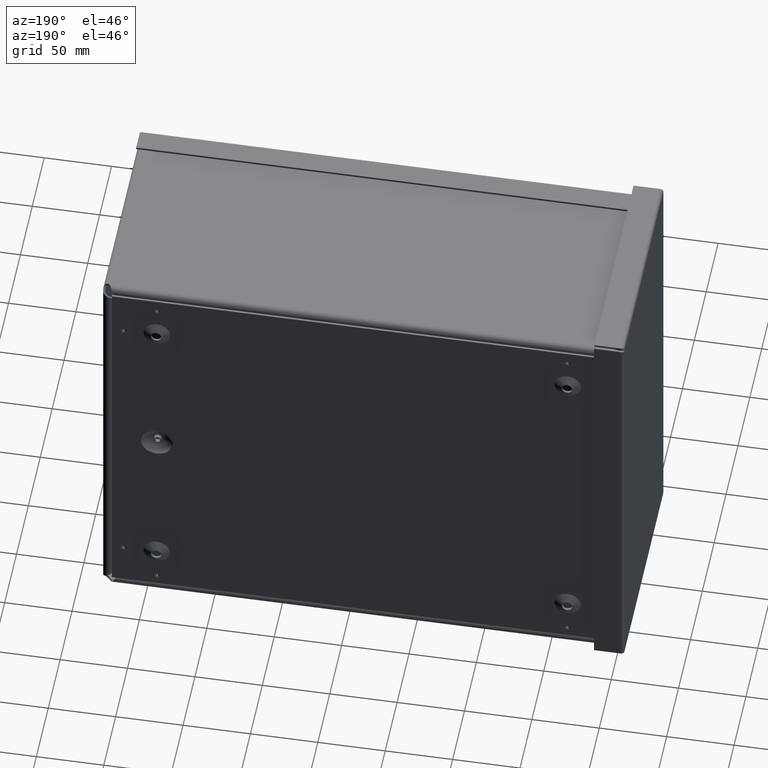
[diagram: clean part render]
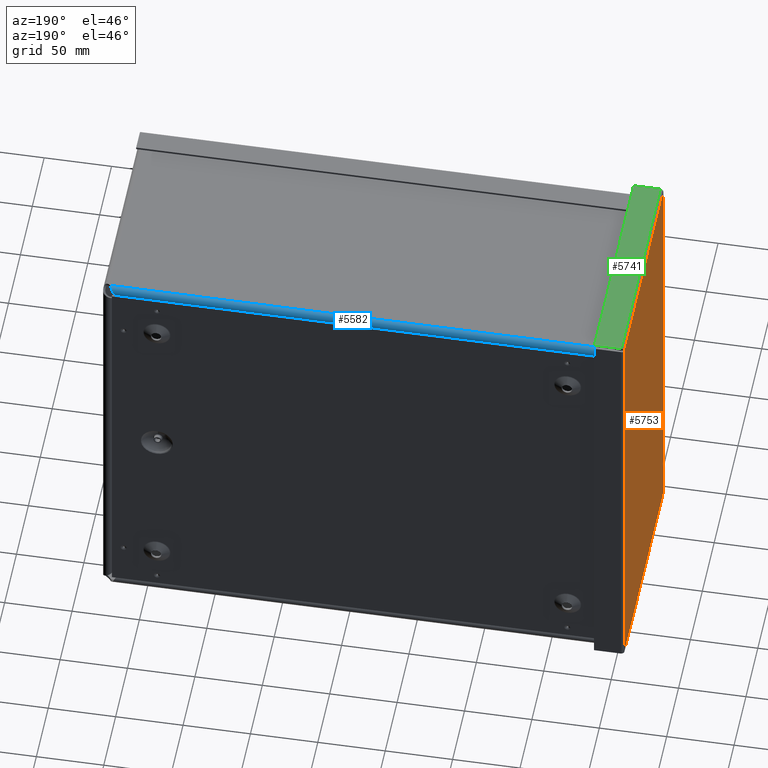
[diagram: same view with three faces highlighted in distinct colors, each labeled with its STEP entity id]
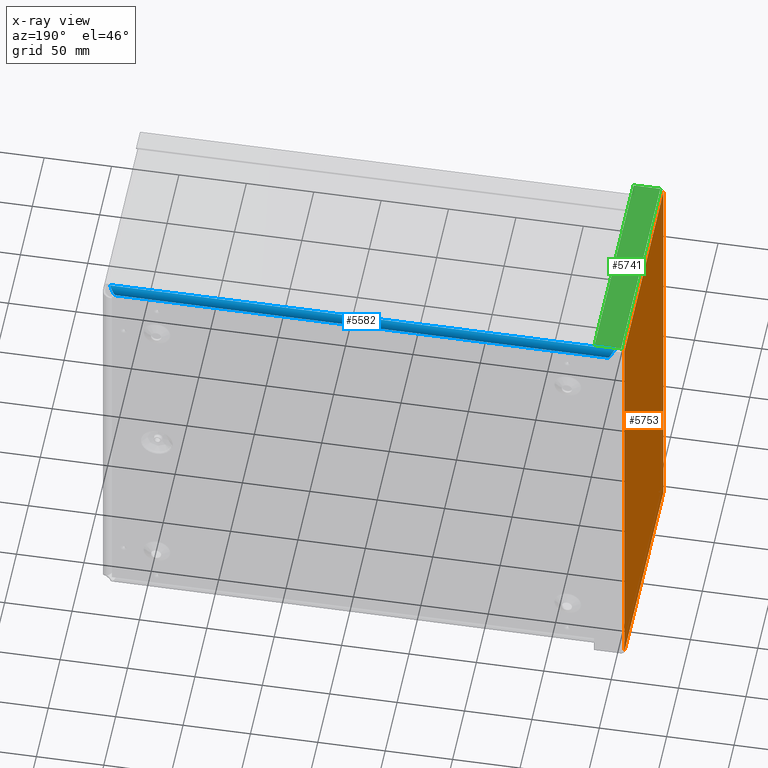
[diagram: x-ray of the same camera — body ghosted, the three highlighted faces saturated]
A machine part, auxiliary view with three faces highlighted in distinct colors.
The next image is the same camera in x-ray (body ghosted, the three faces saturated) — at least one of them is partly hidden behind the body in this view.
Their STEP definitions:

[orange] entity #5753 — the highlighted planar face has unit normal (1, 0, -0).
#377=PLANE($,#6107);
#860=FACE_OUTER_BOUND($,#1219,.T.);
#1219=EDGE_LOOP($,(#4773,#4774,#4775,#4776));
#1885=LINE($,#10082,#2342);
#1901=LINE($,#10184,#2358);
#1916=LINE($,#10284,#2373);
#1931=LINE($,#10383,#2388);
#2342=VECTOR($,#7067,6.4385);
#2358=VECTOR($,#7097,12.4385);
#2373=VECTOR($,#7126,6.4385);
#2388=VECTOR($,#7155,12.4385);
#2754=VERTEX_POINT($,#10073);
#2755=VERTEX_POINT($,#10081);
#2766=VERTEX_POINT($,#10183);
#2776=VERTEX_POINT($,#10283);
#3414=EDGE_CURVE($,#2755,#2754,#1885,.T.);
#3434=EDGE_CURVE($,#2766,#2755,#1901,.T.);
#3453=EDGE_CURVE($,#2776,#2766,#1916,.T.);
#3472=EDGE_CURVE($,#2754,#2776,#1931,.T.);
#4773=ORIENTED_EDGE($,*,*,#3414,.T.);
#4774=ORIENTED_EDGE($,*,*,#3472,.T.);
#4775=ORIENTED_EDGE($,*,*,#3453,.T.);
#4776=ORIENTED_EDGE($,*,*,#3434,.T.);
#5753=ADVANCED_FACE($,(#860),#377,.F.);
#6107=AXIS2_PLACEMENT_3D($,#10470,#7182,#7183);
#7067=DIRECTION($,(-2.17240999107883E-016,1.,0.));
#7097=DIRECTION($,(-1.,-1.1244974657363E-016,0.));
#7126=DIRECTION($,(0.,-1.,0.));
#7155=DIRECTION($,(1.,2.24899493147261E-016,0.));
#7182=DIRECTION('center_axis',(0.,0.,1.));
#7183=DIRECTION('ref_axis',(1.,0.,0.));
#10073=CARTESIAN_POINT('',(-5.90675,2.90675,2.18547839493141E-017));
#10081=CARTESIAN_POINT('',(-5.90675,-3.53175,1.09273919746571E-017));
#10082=CARTESIAN_POINT($,(-5.90675,-1.922125,0.));
#10183=CARTESIAN_POINT('',(6.53175,-3.53175,2.18547839493141E-017));
#10184=CARTESIAN_POINT($,(3.422125,-3.53175,0.));
#10283=CARTESIAN_POINT('',(6.53175,2.90675,2.18547839493141E-017));
#10284=CARTESIAN_POINT($,(6.53175,1.297125,0.));
#10383=CARTESIAN_POINT($,(-2.797125,2.90675,0.));
#10470=CARTESIAN_POINT('Origin',(0.312500000000001,-0.3125,0.));

[blue] entity #5582 — the highlighted cylindrical surface (edge-blend (fillet) strip) has radius 3.956 mm, axis along (-1, -0, -0).
#566=CYLINDRICAL_SURFACE($,#5916,0.155749999999791);
#693=FACE_OUTER_BOUND($,#1024,.T.);
#1024=EDGE_LOOP($,(#4037,#4038,#4039,#4040));
#1454=B_SPLINE_CURVE_WITH_KNOTS($,3,(#8435,#8436,#8437,#8438,#8439,#8440,
#8441,#8442,#8443,#8444,#8445,#8446,#8447),.UNSPECIFIED.,.F.,.F.,(4,3,3,
3,4),(0.,0.366355564235313,1.099066692706,1.83177782117668,2.56448894964737),
 .UNSPECIFIED.);
#1457=B_SPLINE_CURVE_WITH_KNOTS($,3,(#8511,#8512,#8513,#8514,#8515,#8516,
#8517,#8518,#8519,#8520,#8521,#8522,#8523),.UNSPECIFIED.,.F.,.F.,(4,3,3,
3,4),(0.,0.73271112847067,1.46542225694136,1.83177782117671,2.56448894964738),
 .UNSPECIFIED.);
#1701=LINE($,#9282,#2158);
#1702=LINE($,#9284,#2159);
#2158=VECTOR($,#6557,14.7639167778129);
#2159=VECTOR($,#6560,14.3265626388137);
#2541=VERTEX_POINT($,#8344);
#2548=VERTEX_POINT($,#8397);
#2549=VERTEX_POINT($,#8434);
#2554=VERTEX_POINT($,#8509);
#3039=EDGE_CURVE($,#2549,#2541,#1454,.T.);
#3046=EDGE_CURVE($,#2548,#2554,#1457,.T.);
#3169=EDGE_CURVE($,#2554,#2549,#1701,.T.);
#3170=EDGE_CURVE($,#2548,#2541,#1702,.T.);
#4037=ORIENTED_EDGE($,*,*,#3046,.T.);
#4038=ORIENTED_EDGE($,*,*,#3169,.T.);
#4039=ORIENTED_EDGE($,*,*,#3039,.T.);
#4040=ORIENTED_EDGE($,*,*,#3170,.F.);
#5582=ADVANCED_FACE($,(#693),#566,.T.);
#5916=AXIS2_PLACEMENT_3D($,#9283,#6558,#6559);
#6557=DIRECTION($,(1.,1.00651136852993E-018,7.07488332554319E-014));
#6558=DIRECTION('center_axis',(-1.,-1.00651136852899E-018,-7.0697359522546E-014));
#6559=DIRECTION('ref_axis',(-1.00651136751266E-018,1.,-1.43730593581144E-014));
#6560=DIRECTION($,(1.,-4.4710187800875E-017,7.07675809018469E-014));
#8344=CARTESIAN_POINT('',(8.67437408496551,3.10072704396144,-27.1876344737709));
#8397=CARTESIAN_POINT('',(-5.65218855384815,3.10072704396144,-27.1876344737719));
#8434=CARTESIAN_POINT('',(8.89726174882959,3.01575,-26.9013587502541));
#8435=CARTESIAN_POINT('Ctrl Pts',(8.89726174882958,3.01575,-26.9013587502541));
#8436=CARTESIAN_POINT('Ctrl Pts',(8.88664805055034,3.03476995970989,-26.9013587502541));
#8437=CARTESIAN_POINT('Ctrl Pts',(8.8760343522711,3.05382284603106,-26.9047920596553));
#8438=CARTESIAN_POINT('Ctrl Pts',(8.86542065399185,3.0715644334981,-26.9116095422944));
#8439=CARTESIAN_POINT('Ctrl Pts',(8.84419325743337,3.10704760843219,-26.9252445075728));
#8440=CARTESIAN_POINT('Ctrl Pts',(8.82296586087489,3.13728558794978,-26.9524161658032));
#8441=CARTESIAN_POINT('Ctrl Pts',(8.8017384643164,3.15452966750568,-26.9862370874559));
#8442=CARTESIAN_POINT('Ctrl Pts',(8.78051106775792,3.17177374706158,-27.0200580091087));
#8443=CARTESIAN_POINT('Ctrl Pts',(8.75928367119944,3.17602392665578,-27.0605281941838));
#8444=CARTESIAN_POINT('Ctrl Pts',(8.73805627464095,3.1662320550618,-27.0972336748681));
#8445=CARTESIAN_POINT('Ctrl Pts',(8.71682887808247,3.15644018346781,-27.1339391555524));
#8446=CARTESIAN_POINT('Ctrl Pts',(8.69560148152399,3.13260626068563,-27.1668799318459));
#8447=CARTESIAN_POINT('Ctrl Pts',(8.67437408496551,3.10072704396148,-27.187634473771));
#8509=CARTESIAN_POINT('',(-5.86665502898328,3.01575,-26.9013587502552));
#8511=CARTESIAN_POINT('Ctrl Pts',(-5.65218855384814,3.10072704396154,-27.1876344737721));
#8512=CARTESIAN_POINT('Ctrl Pts',(-5.67261393243244,3.13260626068571,-27.166879931847));
#8513=CARTESIAN_POINT('Ctrl Pts',(-5.69303931101674,3.15644901167345,-27.1339021645757));
#8514=CARTESIAN_POINT('Ctrl Pts',(-5.71346468960104,3.16621154625176,-27.0972493560165));
#8515=CARTESIAN_POINT('Ctrl Pts',(-5.73389006818534,3.17597408083008,-27.0605965474573));
#8516=CARTESIAN_POINT('Ctrl Pts',(-5.75431544676964,3.17165639899896,-27.0202686976102));
#8517=CARTESIAN_POINT('Ctrl Pts',(-5.77474082535394,3.15445095717781,-26.9863631825393));
#8518=CARTESIAN_POINT('Ctrl Pts',(-5.78495351464609,3.14584823626724,-26.9694104250039));
#8519=CARTESIAN_POINT('Ctrl Pts',(-5.79516620393824,3.13402357535915,-26.9540632511625));
#8520=CARTESIAN_POINT('Ctrl Pts',(-5.80537889323038,3.11985331985119,-26.9413862293543));
#8521=CARTESIAN_POINT('Ctrl Pts',(-5.82580427181468,3.09151280883526,-26.9160321857381));
#8522=CARTESIAN_POINT('Ctrl Pts',(-5.84622965039898,3.0537899194198,-26.901358750255));
#8523=CARTESIAN_POINT('Ctrl Pts',(-5.86665502898328,3.01574999999999,-26.901358750255));
#9282=CARTESIAN_POINT($,(9.33898916683692,3.01575,-26.9013587502541));
#9283=CARTESIAN_POINT('Origin',(1.50000000000013,3.01574999999999,-27.0571087502547));
#9284=CARTESIAN_POINT($,(1.50000000000014,3.10072704396144,-27.1876344737714));

[green] entity #5741 — the highlighted planar face has unit normal (0, -0, -1).
#370=PLANE($,#6097);
#848=FACE_OUTER_BOUND($,#1207,.T.);
#1207=EDGE_LOOP($,(#4725,#4726,#4727,#4728));
#1915=LINE($,#10275,#2372);
#1921=LINE($,#10303,#2378);
#1926=LINE($,#10365,#2383);
#1928=LINE($,#10368,#2385);
#2372=VECTOR($,#7125,6.47890291308792);
#2378=VECTOR($,#7135,0.78175);
#2383=VECTOR($,#7142,0.78175);
#2385=VECTOR($,#7146,6.47890291308792);
#2774=VERTEX_POINT($,#10273);
#2775=VERTEX_POINT($,#10274);
#2781=VERTEX_POINT($,#10302);
#2783=VERTEX_POINT($,#10364);
#3451=EDGE_CURVE($,#2774,#2775,#1915,.T.);
#3459=EDGE_CURVE($,#2781,#2775,#1921,.T.);
#3466=EDGE_CURVE($,#2774,#2783,#1926,.T.);
#3468=EDGE_CURVE($,#2783,#2781,#1928,.T.);
#4725=ORIENTED_EDGE($,*,*,#3451,.T.);
#4726=ORIENTED_EDGE($,*,*,#3459,.F.);
#4727=ORIENTED_EDGE($,*,*,#3468,.F.);
#4728=ORIENTED_EDGE($,*,*,#3466,.F.);
#5741=ADVANCED_FACE($,(#848),#370,.F.);
#6097=AXIS2_PLACEMENT_3D($,#10369,#7147,#7148);
#7125=DIRECTION($,(-5.60853707331342E-016,1.,1.88514117096039E-030));
#7135=DIRECTION($,(-5.39030285815812E-015,-1.1339875512552E-030,-1.));
#7142=DIRECTION($,(5.39030285815812E-015,1.1339875512552E-030,1.));
#7146=DIRECTION($,(-6.42897996691618E-016,1.,-6.52419613267255E-016));
#7147=DIRECTION('center_axis',(-1.,-5.60853707331342E-016,4.09622586482834E-015));
#7148=DIRECTION('ref_axis',(4.51194637207664E-015,-1.40998324127395E-016,
1.));
#10273=CARTESIAN_POINT('',(6.625,-3.55195145654396,0.0932500000000022));
#10274=CARTESIAN_POINT('',(6.625,2.92695145654396,0.0932499999999994));
#10275=CARTESIAN_POINT($,(6.625,-0.312499999999999,0.0932499999999994));
#10302=CARTESIAN_POINT('',(6.625,2.92695145654396,0.874999999999999));
#10303=CARTESIAN_POINT($,(6.625,2.92695145654396,0.0932499999999994));
#10364=CARTESIAN_POINT('',(6.62500000000001,-3.55195145654396,0.875000000000003));
#10365=CARTESIAN_POINT($,(6.625,-3.55195145654396,0.0932500000000036));
#10368=CARTESIAN_POINT($,(6.62500000000001,-3.55195145654396,0.875000000000003));
#10369=CARTESIAN_POINT('Origin',(6.625,-0.312499999999999,0.450716135906741));